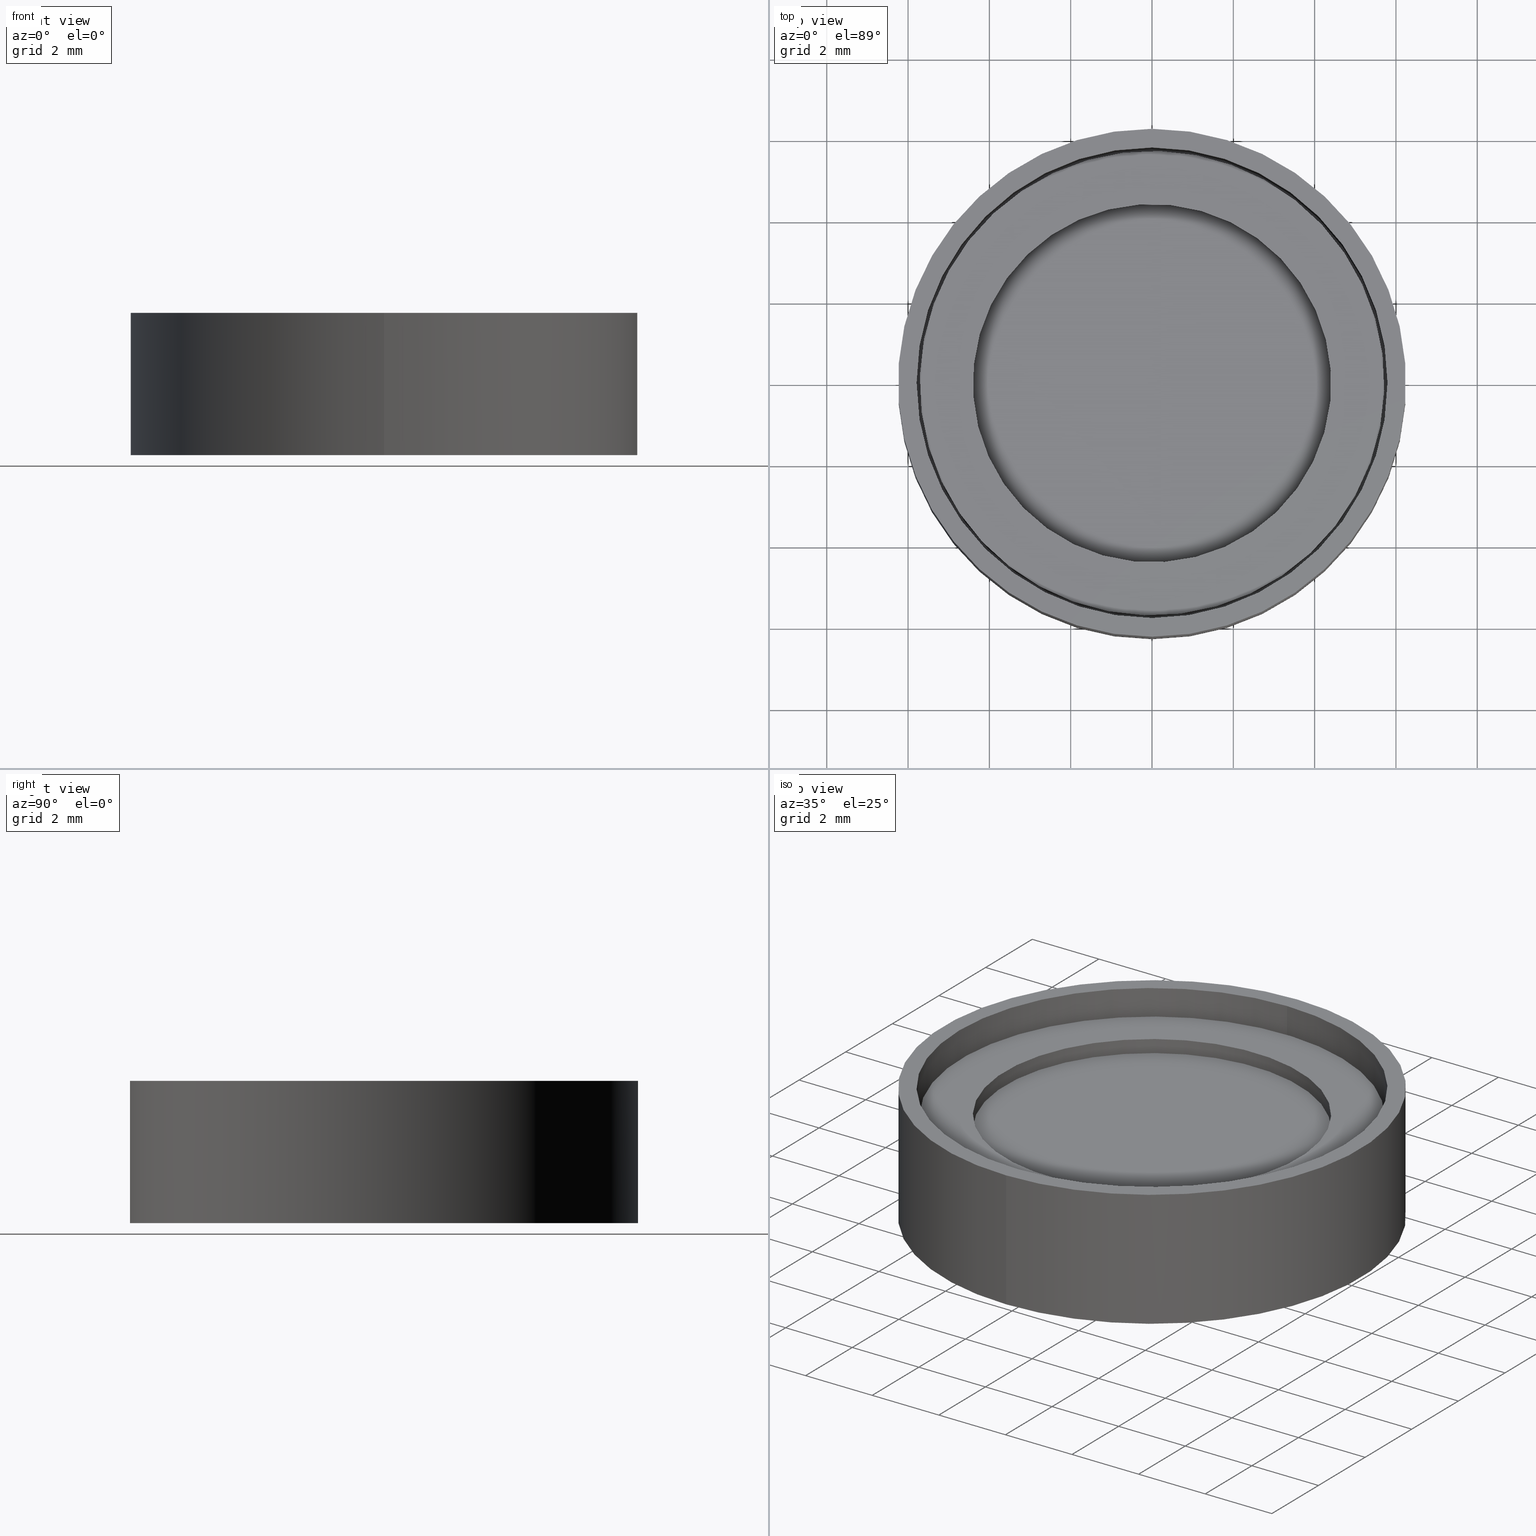
[diagram: canonical four-view strip — front | top / right | iso, engineering-drawing reading convention]
A machine part, canonical four-view strip (front | top / right | iso — engineering-drawing reading convention). The complete STEP part file that produces these views, byte-faithful:
ISO-10303-21;
HEADER;
FILE_DESCRIPTION (( 'STEP AP203' ),
    '1' );
FILE_NAME ('199409.STEP',
    '2020-03-04T03:56:28',
    ( '' ),
    ( '' ),
    'SwSTEP 2.0',
    'SolidWorks 2019',
    '' );
FILE_SCHEMA (( 'CONFIG_CONTROL_DESIGN' ));
ENDSEC;

DATA;
#1 = PLANE ( 'NONE',  #22 ) ;
#2 = APPLICATION_PROTOCOL_DEFINITION ( 'international standard', 'config_control_design', 1994, #388 ) ;
#3 = VECTOR ( 'NONE', #374, 1000.000000000000000 ) ;
#4 = DIRECTION ( 'NONE',  ( 0.0000000000000000000, 1.000000000000000000, 1.224606353822377751E-16 ) ) ;
#5 = APPROVAL ( #118, 'δָ��' ) ;
#6 =( LENGTH_UNIT ( ) NAMED_UNIT ( * ) SI_UNIT ( .MILLI., .METRE. ) );
#7 = LINE ( 'NONE', #559, #201 ) ;
#8 = ORIENTED_EDGE ( 'NONE', *, *, #491, .T. ) ;
#9 = DIRECTION ( 'NONE',  ( 0.0000000000000000000, 0.0000000000000000000, 1.000000000000000000 ) ) ;
#10 = EDGE_LOOP ( 'NONE', ( #214, #481 ) ) ;
#11 = ADVANCED_FACE ( 'NONE', ( #392, #138 ), #654, .T. ) ;
#12 = LOCAL_TIME ( 11, 56, 28.00000000000000000, #568 ) ;
#13 = FACE_OUTER_BOUND ( 'NONE', #496, .T. ) ;
#14 = ORIENTED_EDGE ( 'NONE', *, *, #460, .T. ) ;
#15 = EDGE_LOOP ( 'NONE', ( #527, #490 ) ) ;
#16 = DIRECTION ( 'NONE',  ( 0.0000000000000000000, 1.296294465540253898E-16, -1.000000000000000000 ) ) ;
#17 = VERTEX_POINT ( 'NONE', #232 ) ;
#18 = ORIENTED_EDGE ( 'NONE', *, *, #320, .T. ) ;
#19 = FACE_OUTER_BOUND ( 'NONE', #593, .T. ) ;
#20 = ORIENTED_EDGE ( 'NONE', *, *, #386, .F. ) ;
#21 = CARTESIAN_POINT ( 'NONE',  ( 5.319130907416610252E-16, -4.343399999999999928, -1.063791047438421996E-15 ) ) ;
#22 = AXIS2_PLACEMENT_3D ( 'NONE', #200, #423, #115 ) ;
#23 = ORIENTED_EDGE ( 'NONE', *, *, #194, .T. ) ;
#24 = AXIS2_PLACEMENT_3D ( 'NONE', #347, #147, #197 ) ;
#25 = SECURITY_CLASSIFICATION ( '', '', #477 ) ;
#26 = CARTESIAN_POINT ( 'NONE',  ( 7.652083059792319479E-16, -6.248400000000000176, 3.500000000000000000 ) ) ;
#27 = ORIENTED_EDGE ( 'NONE', *, *, #491, .F. ) ;
#28 = EDGE_CURVE ( 'NONE', #537, #268, #43, .T. ) ;
#29 = DIRECTION ( 'NONE',  ( 0.0000000000000000000, 1.224606353822375779E-16, -1.000000000000000000 ) ) ;
#30 = VERTEX_POINT ( 'NONE', #287 ) ;
#31 = DIRECTION ( 'NONE',  ( 0.0000000000000000000, 0.0000000000000000000, 1.000000000000000000 ) ) ;
#32 = CC_DESIGN_PERSON_AND_ORGANIZATION_ASSIGNMENT ( #205, #166, ( #25 ) ) ;
#33 = FACE_OUTER_BOUND ( 'NONE', #422, .T. ) ;
#34 = VECTOR ( 'NONE', #299, 1000.000000000000000 ) ;
#35 = VECTOR ( 'NONE', #554, 1000.000000000000000 ) ;
#36 = EDGE_CURVE ( 'NONE', #224, #627, #191, .T. ) ;
#37 = CARTESIAN_POINT ( 'NONE',  ( 4.734387201388630118, 3.201062765290226153, 2.381000000000000227 ) ) ;
#38 = ORIENTED_EDGE ( 'NONE', *, *, #353, .F. ) ;
#39 = DIRECTION ( 'NONE',  ( 0.0000000000000000000, 0.0000000000000000000, 1.000000000000000000 ) ) ;
#40 = CARTESIAN_POINT ( 'NONE',  ( 0.0000000000000000000, 5.791199999999999903, 3.500000000000000000 ) ) ;
#41 = CYLINDRICAL_SURFACE ( 'NONE', #401, 5.699999999999999289 ) ;
#42 = DIRECTION ( 'NONE',  ( 0.0000000000000000000, 1.224606353822375779E-16, -1.000000000000000000 ) ) ;
#43 = CIRCLE ( 'NONE', #584, 5.714999999999998082 ) ;
#44 = CC_DESIGN_SECURITY_CLASSIFICATION ( #25, ( #390 ) ) ;
#45 = DIRECTION ( 'NONE',  ( 0.0000000000000000000, 0.0000000000000000000, -1.000000000000000000 ) ) ;
#46 = FACE_BOUND ( 'NONE', #569, .T. ) ;
#47 = CARTESIAN_POINT ( 'NONE',  ( 0.0000000000000000000, 0.0000000000000000000, 2.380999999999999339 ) ) ;
#48 = CARTESIAN_POINT ( 'NONE',  ( 7.092174543222150290E-16, -5.791199999999999903, 0.6857999999999999652 ) ) ;
#49 = ORIENTED_EDGE ( 'NONE', *, *, #635, .F. ) ;
#50 = CARTESIAN_POINT ( 'NONE',  ( 0.0000000000000000000, 5.854700000000000237, 0.3810000000000000053 ) ) ;
#51 = CARTESIAN_POINT ( 'NONE',  ( 0.0000000000000000000, -4.665750208063249815E-17, 0.3810000000000000053 ) ) ;
#52 = CLOSED_SHELL ( 'NONE', ( #356, #499, #508, #87, #468, #384 ) ) ;
#53 = DIRECTION ( 'NONE',  ( 0.0000000000000000000, 0.0000000000000000000, 1.000000000000000000 ) ) ;
#54 = CIRCLE ( 'NONE', #426, 5.699999999999999289 ) ;
#55 = DIRECTION ( 'NONE',  ( 0.0000000000000000000, 1.224606353822375779E-16, -1.000000000000000000 ) ) ;
#56 = ADVANCED_FACE ( 'NONE', ( #33 ), #605, .T. ) ;
#57 = CALENDAR_DATE ( 2020, 4, 3 ) ;
#58 = FACE_BOUND ( 'NONE', #621, .T. ) ;
#59 = DATE_TIME_ROLE ( 'classification_date' ) ;
#60 = VERTEX_POINT ( 'NONE', #609 ) ;
#61 = DIRECTION ( 'NONE',  ( 0.8284142084669521289, 0.5601159694296110603, 0.0000000000000000000 ) ) ;
#62 = ORIENTED_EDGE ( 'NONE', *, *, #256, .F. ) ;
#63 = AXIS2_PLACEMENT_3D ( 'NONE', #437, #323, #530 ) ;
#64 = ORIENTED_EDGE ( 'NONE', *, *, #516, .F. ) ;
#65 = VECTOR ( 'NONE', #450, 1000.000000000000000 ) ;
#66 = CARTESIAN_POINT ( 'NONE',  ( 0.0000000000000000000, 4.343399999999999928, -1.166437552015811992E-16 ) ) ;
#67 = ORIENTED_EDGE ( 'NONE', *, *, #652, .F. ) ;
#68 = PRODUCT_DEFINITION ( 'δ֪', '', #390, #658 ) ;
#69 = VERTEX_POINT ( 'NONE', #183 ) ;
#70 = DIRECTION ( 'NONE',  ( 0.8284142084669521289, 0.5601159694296110603, 0.0000000000000000000 ) ) ;
#71 = ORIENTED_EDGE ( 'NONE', *, *, #28, .F. ) ;
#72 = ADVANCED_BREP_SHAPE_REPRESENTATION ( '199409', ( #184, #413, #643, #511 ), #624 ) ;
#73 = COORDINATED_UNIVERSAL_TIME_OFFSET ( 8, 0, .AHEAD. ) ;
#74 = ORIENTED_EDGE ( 'NONE', *, *, #588, .T. ) ;
#75 = DIRECTION ( 'NONE',  ( 0.0000000000000000000, 0.0000000000000000000, -1.000000000000000000 ) ) ;
#76 = VERTEX_POINT ( 'NONE', #143 ) ;
#77 = DIRECTION ( 'NONE',  ( 0.0000000000000000000, 1.224606353822377751E-16, -1.000000000000000000 ) ) ;
#78 = AXIS2_PLACEMENT_3D ( 'NONE', #603, #240, #651 ) ;
#79 = ORIENTED_EDGE ( 'NONE', *, *, #472, .F. ) ;
#80 = LOCAL_TIME ( 11, 56, 28.00000000000000000, #487 ) ;
#81 = DIRECTION ( 'NONE',  ( 0.0000000000000000000, 1.000000000000000000, 1.310508220644863167E-16 ) ) ;
#82 = DIRECTION ( 'NONE',  ( 0.0000000000000000000, 1.224606353822375779E-16, -1.000000000000000000 ) ) ;
#83 = PRODUCT ( '199409', '199409', '', ( #203 ) ) ;
#84 = DIRECTION ( 'NONE',  ( 0.0000000000000000000, -0.0000000000000000000, 1.000000000000000000 ) ) ;
#85 = ORIENTED_EDGE ( 'NONE', *, *, #397, .T. ) ;
#86 = DIRECTION ( 'NONE',  ( 0.8284142084669521289, 0.5601159694296110603, 0.0000000000000000000 ) ) ;
#87 = ADVANCED_FACE ( 'NONE', ( #187, #641 ), #179, .F. ) ;
#88 = ORIENTED_EDGE ( 'NONE', *, *, #185, .T. ) ;
#89 = CIRCLE ( 'NONE', #622, 4.343399999999999928 ) ;
#90 = AXIS2_PLACEMENT_3D ( 'NONE', #547, #545, #454 ) ;
#91 = DIRECTION ( 'NONE',  ( 0.0000000000000000000, 1.000000000000000000, 1.203702003715951087E-16 ) ) ;
#92 = ORIENTED_EDGE ( 'NONE', *, *, #416, .T. ) ;
#93 = CARTESIAN_POINT ( 'NONE',  ( -4.599014845327200618, -3.367352439597023128, 2.380999999999999339 ) ) ;
#94 = ORIENTED_EDGE ( 'NONE', *, *, #397, .F. ) ;
#95 = CARTESIAN_POINT ( 'NONE',  ( 0.0000000000000000000, 4.343399999999999928, 0.0000000000000000000 ) ) ;
#96 = FACE_OUTER_BOUND ( 'NONE', #264, .T. ) ;
#97 = AXIS2_PLACEMENT_3D ( 'NONE', #156, #101, #611 ) ;
#98 = EDGE_CURVE ( 'NONE', #557, #478, #132, .T. ) ;
#99 = APPROVAL_PERSON_ORGANIZATION ( #310, #134, #272 ) ;
#100 = APPLICATION_CONTEXT ( 'configuration controlled 3d designs of mechanical parts and assemblies' ) ;
#101 = DIRECTION ( 'NONE',  ( 0.0000000000000000000, 1.224606353822377751E-16, -1.000000000000000000 ) ) ;
#102 = DIRECTION ( 'NONE',  ( 0.0000000000000000000, 1.000000000000000000, 1.224606353822376026E-16 ) ) ;
#103 = FACE_OUTER_BOUND ( 'NONE', #358, .T. ) ;
#104 = PERSON_AND_ORGANIZATION_ROLE ( 'design_owner' ) ;
#105 = EDGE_CURVE ( 'NONE', #76, #380, #236, .T. ) ;
#106 = CARTESIAN_POINT ( 'NONE',  ( 7.092174543222150290E-16, -5.791199999999999903, 3.500000000000000000 ) ) ;
#107 = CIRCLE ( 'NONE', #646, 5.854700000000000237 ) ;
#108 = DATE_TIME_ROLE ( 'creation_date' ) ;
#109 = CIRCLE ( 'NONE', #193, 4.406899999999999373 ) ;
#110 = LOCAL_TIME ( 11, 56, 28.00000000000000000, #532 ) ;
#111 = DIRECTION ( 'NONE',  ( 0.0000000000000000000, 0.0000000000000000000, 1.000000000000000000 ) ) ;
#112 = DATE_AND_TIME ( #208, #12 ) ;
#113 = FACE_OUTER_BOUND ( 'NONE', #313, .T. ) ;
#114 = ORIENTED_EDGE ( 'NONE', *, *, #465, .T. ) ;
#115 = DIRECTION ( 'NONE',  ( 1.000000000000000000, 0.0000000000000000000, 0.0000000000000000000 ) ) ;
#116 = ORIENTED_EDGE ( 'NONE', *, *, #260, .T. ) ;
#117 = CC_DESIGN_PERSON_AND_ORGANIZATION_ASSIGNMENT ( #566, #104, ( #83 ) ) ;
#118 = APPROVAL_STATUS ( 'not_yet_approved' ) ;
#119 = CLOSED_SHELL ( 'NONE', ( #601, #367, #457, #518 ) ) ;
#120 = AXIS2_PLACEMENT_3D ( 'NONE', #458, #329, #285 ) ;
#121 = DIRECTION ( 'NONE',  ( 0.0000000000000000000, 0.0000000000000000000, 1.000000000000000000 ) ) ;
#122 = VERTEX_POINT ( 'NONE', #394 ) ;
#123 = PERSON_AND_ORGANIZATION_ROLE ( 'design_supplier' ) ;
#124 = EDGE_LOOP ( 'NONE', ( #92, #85 ) ) ;
#125 = DIRECTION ( 'NONE',  ( 0.0000000000000000000, 1.224606353822375779E-16, -1.000000000000000000 ) ) ;
#126 = ORIENTED_EDGE ( 'NONE', *, *, #341, .T. ) ;
#127 = EDGE_CURVE ( 'NONE', #557, #535, #389, .T. ) ;
#128 = PLANE ( 'NONE',  #90 ) ;
#129 = EDGE_CURVE ( 'NONE', #486, #262, #501, .T. ) ;
#130 = ORIENTED_EDGE ( 'NONE', *, *, #359, .F. ) ;
#131 = DIRECTION ( 'NONE',  ( 0.0000000000000000000, 1.000000000000000000, 1.224606353822377751E-16 ) ) ;
#132 = LINE ( 'NONE', #334, #245 ) ;
#133 = CIRCLE ( 'NONE', #237, 6.248400000000000176 ) ;
#134 = APPROVAL ( #325, 'δָ��' ) ;
#135 = FACE_OUTER_BOUND ( 'NONE', #124, .T. ) ;
#136 = DIRECTION ( 'NONE',  ( 1.000000000000000000, 0.0000000000000000000, 0.0000000000000000000 ) ) ;
#137 = DIRECTION ( 'NONE',  ( 0.8068447097065265528, 0.5907635858942146267, 0.0000000000000000000 ) ) ;
#138 = FACE_BOUND ( 'NONE', #10, .T. ) ;
#139 = DIRECTION ( 'NONE',  ( 0.8068447097065264417, 0.5907635858942145157, 0.0000000000000000000 ) ) ;
#140 = ORIENTED_EDGE ( 'NONE', *, *, #341, .F. ) ;
#141 = AXIS2_PLACEMENT_3D ( 'NONE', #503, #82, #337 ) ;
#142 = CIRCLE ( 'NONE', #531, 5.791199999999999903 ) ;
#143 = CARTESIAN_POINT ( 'NONE',  ( -4.599014845327200618, -3.367352439597023128, 2.380999999999999339 ) ) ;
#144 = EDGE_CURVE ( 'NONE', #262, #486, #425, .T. ) ;
#145 = DIRECTION ( 'NONE',  ( 0.0000000000000000000, 1.000000000000000000, 1.310508220644863167E-16 ) ) ;
#146 = CARTESIAN_POINT ( 'NONE',  ( 3.650738575293011046, 2.468375065679352609, 2.762000000000000011 ) ) ;
#147 = DIRECTION ( 'NONE',  ( 0.0000000000000000000, 0.0000000000000000000, 1.000000000000000000 ) ) ;
#148 = CARTESIAN_POINT ( 'NONE',  ( 0.0000000000000000000, 5.854700000000000237, 7.169702819723869903E-16 ) ) ;
#149 = AXIS2_PLACEMENT_3D ( 'NONE', #546, #387, #595 ) ;
#150 = LINE ( 'NONE', #93, #213 ) ;
#151 = DIRECTION ( 'NONE',  ( 0.0000000000000000000, 1.000000000000000000, 1.497723680736986336E-16 ) ) ;
#152 = EDGE_CURVE ( 'NONE', #262, #328, #207, .T. ) ;
#153 = CARTESIAN_POINT ( 'NONE',  ( 0.0000000000000000000, 4.343399999999999928, 0.3810000000000000053 ) ) ;
#154 = APPROVAL_ROLE ( '' ) ;
#155 = VERTEX_POINT ( 'NONE', #617 ) ;
#156 = CARTESIAN_POINT ( 'NONE',  ( 0.0000000000000000000, 0.0000000000000000000, 0.0000000000000000000 ) ) ;
#157 = AXIS2_PLACEMENT_3D ( 'NONE', #520, #55, #620 ) ;
#158 = APPROVAL_DATE_TIME ( #435, #5 ) ;
#159 = AXIS2_PLACEMENT_3D ( 'NONE', #298, #406, #243 ) ;
#160 = ORIENTED_EDGE ( 'NONE', *, *, #152, .F. ) ;
#161 = CARTESIAN_POINT ( 'NONE',  ( 7.169939614968009697E-16, -5.854700000000000237, -7.169702819723869903E-16 ) ) ;
#162 = APPROVAL_DATE_TIME ( #261, #134 ) ;
#163 = ORIENTED_EDGE ( 'NONE', *, *, #418, .T. ) ;
#164 = DIRECTION ( 'NONE',  ( 0.0000000000000000000, 0.0000000000000000000, 1.000000000000000000 ) ) ;
#165 = VERTEX_POINT ( 'NONE', #564 ) ;
#166 = PERSON_AND_ORGANIZATION_ROLE ( 'classification_officer' ) ;
#167 = ORIENTED_EDGE ( 'NONE', *, *, #335, .F. ) ;
#168 = CARTESIAN_POINT ( 'NONE',  ( 4.599014845327200618, 3.367352439597023572, 2.380999999999999339 ) ) ;
#169 = ORIENTED_EDGE ( 'NONE', *, *, #335, .T. ) ;
#170 = AXIS2_PLACEMENT_3D ( 'NONE', #309, #270, #316 ) ;
#171 = EDGE_LOOP ( 'NONE', ( #315, #578, #638, #94 ) ) ;
#172 = AXIS2_PLACEMENT_3D ( 'NONE', #235, #84, #283 ) ;
#173 = DIRECTION ( 'NONE',  ( 0.8284142084669521289, 0.5601159694296110603, 0.0000000000000000000 ) ) ;
#174 = EDGE_LOOP ( 'NONE', ( #20, #321, #311, #573 ) ) ;
#175 = LINE ( 'NONE', #383, #3 ) ;
#176 = ORIENTED_EDGE ( 'NONE', *, *, #565, .F. ) ;
#177 = ADVANCED_FACE ( 'NONE', ( #103 ), #410, .F. ) ;
#178 = DIRECTION ( 'NONE',  ( 0.0000000000000000000, 1.248103067280821700E-16, -1.000000000000000000 ) ) ;
#179 = PLANE ( 'NONE',  #149 ) ;
#180 = DIRECTION ( 'NONE',  ( 0.0000000000000000000, 0.0000000000000000000, 1.000000000000000000 ) ) ;
#181 = CIRCLE ( 'NONE', #265, 4.343399999999999928 ) ;
#182 = AXIS2_PLACEMENT_3D ( 'NONE', #259, #121, #70 ) ;
#183 = CARTESIAN_POINT ( 'NONE',  ( -4.599014845327200618, -3.367352439597023128, 0.3810000000000000053 ) ) ;
#184 = MANIFOLD_SOLID_BREP ( 'NONE', #614 ) ;
#185 = EDGE_CURVE ( 'NONE', #368, #627, #181, .T. ) ;
#186 = DIRECTION ( 'NONE',  ( 0.0000000000000000000, -0.0000000000000000000, 1.000000000000000000 ) ) ;
#187 = FACE_OUTER_BOUND ( 'NONE', #330, .T. ) ;
#188 = CARTESIAN_POINT ( 'NONE',  ( 4.599014845327200618, 3.367352439597023572, 0.3810000000000000053 ) ) ;
#189 = ORIENTED_EDGE ( 'NONE', *, *, #353, .T. ) ;
#190 = DIRECTION ( 'NONE',  ( 0.0000000000000000000, 1.203702003715949854E-16, -1.000000000000000000 ) ) ;
#191 = LINE ( 'NONE', #645, #226 ) ;
#192 = AXIS2_PLACEMENT_3D ( 'NONE', #538, #9, #327 ) ;
#193 = AXIS2_PLACEMENT_3D ( 'NONE', #248, #467, #195 ) ;
#194 = EDGE_CURVE ( 'NONE', #165, #238, #252, .T. ) ;
#195 = DIRECTION ( 'NONE',  ( 0.8284142084669521289, 0.5601159694296110603, 0.0000000000000000000 ) ) ;
#196 = DIRECTION ( 'NONE',  ( 0.0000000000000000000, 1.224606353822377751E-16, -1.000000000000000000 ) ) ;
#197 = DIRECTION ( 'NONE',  ( 0.8284142084669521289, 0.5601159694296110603, 0.0000000000000000000 ) ) ;
#198 = DIRECTION ( 'NONE',  ( 0.0000000000000000000, 1.224606353822375779E-16, -1.000000000000000000 ) ) ;
#199 = DIRECTION ( 'NONE',  ( 0.0000000000000000000, 0.0000000000000000000, 1.000000000000000000 ) ) ;
#200 = CARTESIAN_POINT ( 'NONE',  ( 0.0000000000000000000, 4.343399999999999928, 0.3810000000000000053 ) ) ;
#201 = VECTOR ( 'NONE', #514, 1000.000000000000000 ) ;
#202 = AXIS2_PLACEMENT_3D ( 'NONE', #430, #16, #218 ) ;
#203 = MECHANICAL_CONTEXT ( 'NONE', #388, 'mechanical' ) ;
#204 = CARTESIAN_POINT ( 'NONE',  ( 0.0000000000000000000, 0.0000000000000000000, 0.0000000000000000000 ) ) ;
#205 = PERSON_AND_ORGANIZATION ( #409, #598 ) ;
#206 = ORIENTED_EDGE ( 'NONE', *, *, #105, .T. ) ;
#207 = LINE ( 'NONE', #463, #596 ) ;
#208 = CALENDAR_DATE ( 2020, 4, 3 ) ;
#209 = ORIENTED_EDGE ( 'NONE', *, *, #320, .F. ) ;
#210 = CARTESIAN_POINT ( 'NONE',  ( 0.0000000000000000000, 6.513626379162269541E-32, -5.318955237192109979E-16 ) ) ;
#211 = ORIENTED_EDGE ( 'NONE', *, *, #460, .F. ) ;
#212 = AXIS2_PLACEMENT_3D ( 'NONE', #371, #111, #629 ) ;
#213 = VECTOR ( 'NONE', #563, 1000.000000000000000 ) ;
#214 = ORIENTED_EDGE ( 'NONE', *, *, #129, .T. ) ;
#215 = CARTESIAN_POINT ( 'NONE',  ( 0.0000000000000000000, 0.0000000000000000000, 2.380999999999999339 ) ) ;
#216 = ORIENTED_EDGE ( 'NONE', *, *, #260, .F. ) ;
#217 = VERTEX_POINT ( 'NONE', #407 ) ;
#218 = DIRECTION ( 'NONE',  ( 0.0000000000000000000, 1.000000000000000000, 1.296294465540254884E-16 ) ) ;
#219 = CC_DESIGN_PERSON_AND_ORGANIZATION_ASSIGNMENT ( #421, #123, ( #390 ) ) ;
#220 = ORIENTED_EDGE ( 'NONE', *, *, #152, .T. ) ;
#221 = APPLICATION_PROTOCOL_DEFINITION ( 'international standard', 'config_control_design', 1994, #100 ) ;
#222 = ORIENTED_EDGE ( 'NONE', *, *, #28, .T. ) ;
#223 = CARTESIAN_POINT ( 'NONE',  ( 0.0000000000000000000, -4.665750208063249815E-17, 0.3810000000000000053 ) ) ;
#224 = VERTEX_POINT ( 'NONE', #153 ) ;
#225 = EDGE_CURVE ( 'NONE', #634, #631, #107, .T. ) ;
#226 = VECTOR ( 'NONE', #344, 1000.000000000000000 ) ;
#227 = AXIS2_PLACEMENT_3D ( 'NONE', #602, #178, #642 ) ;
#228 = CYLINDRICAL_SURFACE ( 'NONE', #170, 5.791199999999999903 ) ;
#229 = EDGE_LOOP ( 'NONE', ( #434, #220, #585, #64 ) ) ;
#230 = CC_DESIGN_DATE_AND_TIME_ASSIGNMENT ( #112, #108, ( #68 ) ) ;
#231 = PLANE ( 'NONE',  #172 ) ;
#232 = CARTESIAN_POINT ( 'NONE',  ( -3.650738575293011490, -2.468375065679352165, 2.381000000000000227 ) ) ;
#233 = CYLINDRICAL_SURFACE ( 'NONE', #266, 5.714999999999998082 ) ;
#234 = ORIENTED_EDGE ( 'NONE', *, *, #472, .T. ) ;
#235 = CARTESIAN_POINT ( 'NONE',  ( 0.0000000000000000000, 0.0000000000000000000, 0.3810000000000000053 ) ) ;
#236 = CIRCLE ( 'NONE', #439, 5.699999999999999289 ) ;
#237 = AXIS2_PLACEMENT_3D ( 'NONE', #517, #608, #102 ) ;
#238 = VERTEX_POINT ( 'NONE', #146 ) ;
#239 = DIRECTION ( 'NONE',  ( 0.0000000000000000000, 1.000000000000000000, 1.224606353822376026E-16 ) ) ;
#240 = DIRECTION ( 'NONE',  ( 0.0000000000000000000, 1.388134143122084055E-16, -1.000000000000000000 ) ) ;
#241 = LINE ( 'NONE', #502, #35 ) ;
#242 = DIRECTION ( 'NONE',  ( 0.0000000000000000000, 0.0000000000000000000, 1.000000000000000000 ) ) ;
#243 = DIRECTION ( 'NONE',  ( 0.0000000000000000000, 1.000000000000000000, 1.296294465540254884E-16 ) ) ;
#244 = CYLINDRICAL_SURFACE ( 'NONE', #377, 5.791199999999999903 ) ;
#245 = VECTOR ( 'NONE', #282, 1000.000000000000000 ) ;
#246 = CARTESIAN_POINT ( 'NONE',  ( -4.734387201388630118, -3.201062765290225709, 2.381000000000000227 ) ) ;
#247 = PLANE ( 'NONE',  #570 ) ;
#248 = CARTESIAN_POINT ( 'NONE',  ( 0.0000000000000000000, 0.0000000000000000000, 2.762000000000000011 ) ) ;
#249 = FACE_OUTER_BOUND ( 'NONE', #555, .T. ) ;
#250 = ADVANCED_FACE ( 'NONE', ( #512 ), #360, .T. ) ;
#251 = DIRECTION ( 'NONE',  ( 0.0000000000000000000, 1.224606353822375779E-16, -1.000000000000000000 ) ) ;
#252 = LINE ( 'NONE', #352, #277 ) ;
#253 = CIRCLE ( 'NONE', #305, 5.791199999999999903 ) ;
#254 = CYLINDRICAL_SURFACE ( 'NONE', #278, 5.854700000000000237 ) ;
#255 = FACE_OUTER_BOUND ( 'NONE', #229, .T. ) ;
#256 = EDGE_CURVE ( 'NONE', #60, #631, #420, .T. ) ;
#257 = PERSON_AND_ORGANIZATION_ROLE ( 'creator' ) ;
#258 = ORIENTED_EDGE ( 'NONE', *, *, #36, .T. ) ;
#259 = CARTESIAN_POINT ( 'NONE',  ( 0.0000000000000000000, 0.0000000000000000000, 2.762000000000000011 ) ) ;
#260 = EDGE_CURVE ( 'NONE', #224, #30, #543, .T. ) ;
#261 = DATE_AND_TIME ( #618, #306 ) ;
#262 = VERTEX_POINT ( 'NONE', #106 ) ;
#263 = DIRECTION ( 'NONE',  ( 0.0000000000000000000, 0.0000000000000000000, 1.000000000000000000 ) ) ;
#264 = EDGE_LOOP ( 'NONE', ( #271, #488 ) ) ;
#265 = AXIS2_PLACEMENT_3D ( 'NONE', #294, #196, #4 ) ;
#266 = AXIS2_PLACEMENT_3D ( 'NONE', #650, #180, #86 ) ;
#267 = DIRECTION ( 'NONE',  ( 0.0000000000000000000, 1.224606353822375779E-16, -1.000000000000000000 ) ) ;
#268 = VERTEX_POINT ( 'NONE', #616 ) ;
#269 = ORIENTED_EDGE ( 'NONE', *, *, #576, .T. ) ;
#270 = DIRECTION ( 'NONE',  ( 0.0000000000000000000, 1.224606353822375779E-16, -1.000000000000000000 ) ) ;
#271 = ORIENTED_EDGE ( 'NONE', *, *, #443, .T. ) ;
#272 = APPROVAL_ROLE ( '' ) ;
#273 = VERTEX_POINT ( 'NONE', #348 ) ;
#274 = DIRECTION ( 'NONE',  ( 0.0000000000000000000, 1.224606353822377751E-16, -1.000000000000000000 ) ) ;
#275 = APPROVAL ( #587, 'δָ��' ) ;
#276 = EDGE_LOOP ( 'NONE', ( #116, #114 ) ) ;
#277 = VECTOR ( 'NONE', #515, 1000.000000000000000 ) ;
#278 = AXIS2_PLACEMENT_3D ( 'NONE', #464, #251, #657 ) ;
#279 = FACE_BOUND ( 'NONE', #372, .T. ) ;
#280 = ORIENTED_EDGE ( 'NONE', *, *, #105, .F. ) ;
#281 = FACE_OUTER_BOUND ( 'NONE', #480, .T. ) ;
#282 = DIRECTION ( 'NONE',  ( 0.0000000000000000000, 1.224606353822375779E-16, -1.000000000000000000 ) ) ;
#283 = DIRECTION ( 'NONE',  ( 0.8068447097065264417, 0.5907635858942145157, 0.0000000000000000000 ) ) ;
#284 = ORIENTED_EDGE ( 'NONE', *, *, #412, .T. ) ;
#285 = DIRECTION ( 'NONE',  ( 0.0000000000000000000, 1.000000000000000000, 1.388134143122084794E-16 ) ) ;
#286 = AXIS2_PLACEMENT_3D ( 'NONE', #507, #470, #297 ) ;
#287 = CARTESIAN_POINT ( 'NONE',  ( 5.319130907416610252E-16, -4.343399999999999928, 0.3810000000000000053 ) ) ;
#288 = DIRECTION ( 'NONE',  ( 0.0000000000000000000, 0.0000000000000000000, 1.000000000000000000 ) ) ;
#289 = DIRECTION ( 'NONE',  ( 0.8284142084669521289, 0.5601159694296110603, 0.0000000000000000000 ) ) ;
#290 = ADVANCED_FACE ( 'NONE', ( #302 ), #571, .F. ) ;
#291 = FACE_OUTER_BOUND ( 'NONE', #628, .T. ) ;
#292 = DIRECTION ( 'NONE',  ( 0.0000000000000000000, 1.224606353822375779E-16, -1.000000000000000000 ) ) ;
#293 = CARTESIAN_POINT ( 'NONE',  ( 0.0000000000000000000, 6.248400000000000176, 3.500000000000000000 ) ) ;
#294 = CARTESIAN_POINT ( 'NONE',  ( 0.0000000000000000000, 6.513626379162269541E-32, -5.318955237192109979E-16 ) ) ;
#295 = CC_DESIGN_APPROVAL ( #275, ( #68 ) ) ;
#296 = APPROVAL_PERSON_ORGANIZATION ( #379, #275, #154 ) ;
#297 = DIRECTION ( 'NONE',  ( 0.0000000000000000000, 1.000000000000000000, 1.497723680736986336E-16 ) ) ;
#298 = CARTESIAN_POINT ( 'NONE',  ( 0.0000000000000000000, -8.398350374513850530E-17, 0.6857999999999999652 ) ) ;
#299 = DIRECTION ( 'NONE',  ( 0.0000000000000000000, 1.224606353822375779E-16, -1.000000000000000000 ) ) ;
#300 = CARTESIAN_POINT ( 'NONE',  ( -4.734387201388630118, -3.201062765290225709, 2.762000000000000011 ) ) ;
#301 = UNCERTAINTY_MEASURE_WITH_UNIT (LENGTH_MEASURE( 1.000000000000000082E-05 ), #6, 'distance_accuracy_value', 'NONE');
#302 = FACE_OUTER_BOUND ( 'NONE', #548, .T. ) ;
#303 = PRODUCT_RELATED_PRODUCT_CATEGORY ( 'detail', '', ( #83 ) ) ;
#304 = AXIS2_PLACEMENT_3D ( 'NONE', #366, #164, #623 ) ;
#305 = AXIS2_PLACEMENT_3D ( 'NONE', #556, #610, #145 ) ;
#306 = LOCAL_TIME ( 11, 56, 28.00000000000000000, #319 ) ;
#307 = PERSON_AND_ORGANIZATION ( #409, #598 ) ;
#308 = ORIENTED_EDGE ( 'NONE', *, *, #497, .T. ) ;
#309 = CARTESIAN_POINT ( 'NONE',  ( 0.0000000000000000000, 0.0000000000000000000, 0.0000000000000000000 ) ) ;
#310 = PERSON_AND_ORGANIZATION ( #409, #598 ) ;
#311 = ORIENTED_EDGE ( 'NONE', *, *, #256, .T. ) ;
#312 = CARTESIAN_POINT ( 'NONE',  ( 0.0000000000000000000, 0.0000000000000000000, 2.381000000000000227 ) ) ;
#313 = EDGE_LOOP ( 'NONE', ( #160, #365, #475, #308 ) ) ;
#314 = ADVANCED_FACE ( 'NONE', ( #255 ), #244, .F. ) ;
#315 = ORIENTED_EDGE ( 'NONE', *, *, #588, .F. ) ;
#316 = DIRECTION ( 'NONE',  ( 0.0000000000000000000, 1.000000000000000000, 1.224606353822375779E-16 ) ) ;
#317 = ORIENTED_EDGE ( 'NONE', *, *, #194, .F. ) ;
#318 = CIRCLE ( 'NONE', #182, 5.714999999999998082 ) ;
#319 = COORDINATED_UNIVERSAL_TIME_OFFSET ( 8, 0, .AHEAD. ) ;
#320 = EDGE_CURVE ( 'NONE', #17, #217, #7, .T. ) ;
#321 = ORIENTED_EDGE ( 'NONE', *, *, #443, .F. ) ;
#322 = ADVANCED_FACE ( 'NONE', ( #96, #46 ), #247, .T. ) ;
#323 = DIRECTION ( 'NONE',  ( 0.0000000000000000000, 0.0000000000000000000, 1.000000000000000000 ) ) ;
#324 = ORIENTED_EDGE ( 'NONE', *, *, #225, .F. ) ;
#325 = APPROVAL_STATUS ( 'not_yet_approved' ) ;
#326 = ORIENTED_EDGE ( 'NONE', *, *, #127, .F. ) ;
#327 = DIRECTION ( 'NONE',  ( 0.8284142084669521289, 0.5601159694296110603, 0.0000000000000000000 ) ) ;
#328 = VERTEX_POINT ( 'NONE', #48 ) ;
#329 = DIRECTION ( 'NONE',  ( 0.0000000000000000000, 1.388134143122084055E-16, -1.000000000000000000 ) ) ;
#330 = EDGE_LOOP ( 'NONE', ( #71, #176 ) ) ;
#331 = VECTOR ( 'NONE', #125, 1000.000000000000000 ) ;
#332 = CARTESIAN_POINT ( 'NONE',  ( 0.0000000000000000000, 0.0000000000000000000, 2.380999999999999339 ) ) ;
#333 = ADVANCED_FACE ( 'NONE', ( #249, #469 ), #1, .T. ) ;
#334 = CARTESIAN_POINT ( 'NONE',  ( 0.0000000000000000000, 6.248400000000000176, 7.651830341223738892E-16 ) ) ;
#335 = EDGE_CURVE ( 'NONE', #238, #217, #342, .T. ) ;
#336 = CARTESIAN_POINT ( 'NONE',  ( 0.0000000000000000000, 5.791199999999999903, 3.500000000000000000 ) ) ;
#337 = DIRECTION ( 'NONE',  ( 0.0000000000000000000, 1.000000000000000000, 1.224606353822376026E-16 ) ) ;
#338 = CARTESIAN_POINT ( 'NONE',  ( 0.0000000000000000000, 9.370480054233440181E-32, -7.651830341223738892E-16 ) ) ;
#339 = ORIENTED_EDGE ( 'NONE', *, *, #528, .F. ) ;
#340 = DIRECTION ( 'NONE',  ( 0.0000000000000000000, 0.0000000000000000000, 1.000000000000000000 ) ) ;
#341 = EDGE_CURVE ( 'NONE', #17, #165, #606, .T. ) ;
#342 = CIRCLE ( 'NONE', #63, 4.406899999999999373 ) ;
#343 = CIRCLE ( 'NONE', #202, 5.854700000000000237 ) ;
#344 = DIRECTION ( 'NONE',  ( 0.0000000000000000000, 1.224606353822375779E-16, -1.000000000000000000 ) ) ;
#345 = DIRECTION ( 'NONE',  ( 0.8068447097065265528, 0.5907635858942146267, 0.0000000000000000000 ) ) ;
#346 = ORIENTED_EDGE ( 'NONE', *, *, #412, .F. ) ;
#347 = CARTESIAN_POINT ( 'NONE',  ( 0.0000000000000000000, 0.0000000000000000000, 2.381000000000000227 ) ) ;
#348 = CARTESIAN_POINT ( 'NONE',  ( 4.734387201388630118, 3.201062765290226153, 2.762000000000000011 ) ) ;
#349 = AXIS2_PLACEMENT_3D ( 'NONE', #40, #447, #136 ) ;
#350 = DIRECTION ( 'NONE',  ( 0.0000000000000000000, 1.000000000000000000, 1.224606353822375779E-16 ) ) ;
#351 = CIRCLE ( 'NONE', #607, 5.699999999999999289 ) ;
#352 = CARTESIAN_POINT ( 'NONE',  ( 3.650738575293011046, 2.468375065679352609, 2.381000000000000227 ) ) ;
#353 = EDGE_CURVE ( 'NONE', #627, #368, #89, .T. ) ;
#354 =( NAMED_UNIT ( * ) SI_UNIT ( $, .STERADIAN. ) SOLID_ANGLE_UNIT ( ) );
#355 = DIRECTION ( 'NONE',  ( 0.0000000000000000000, 1.248103067280821700E-16, -1.000000000000000000 ) ) ;
#356 = ADVANCED_FACE ( 'NONE', ( #13 ), #632, .F. ) ;
#357 = APPROVAL_ROLE ( '' ) ;
#358 = EDGE_LOOP ( 'NONE', ( #211, #216, #258, #189 ) ) ;
#359 = EDGE_CURVE ( 'NONE', #535, #155, #433, .T. ) ;
#360 = CYLINDRICAL_SURFACE ( 'NONE', #560, 6.248400000000000176 ) ;
#361 = ADVANCED_FACE ( 'NONE', ( #113 ), #228, .F. ) ;
#362 = AXIS2_PLACEMENT_3D ( 'NONE', #456, #396, #151 ) ;
#363 = CIRCLE ( 'NONE', #159, 5.854700000000000237 ) ;
#364 = APPROVAL_DATE_TIME ( #428, #275 ) ;
#365 = ORIENTED_EDGE ( 'NONE', *, *, #129, .F. ) ;
#366 = CARTESIAN_POINT ( 'NONE',  ( 0.0000000000000000000, 0.0000000000000000000, 2.381000000000000227 ) ) ;
#367 = ADVANCED_FACE ( 'NONE', ( #579 ), #485, .T. ) ;
#368 = VERTEX_POINT ( 'NONE', #21 ) ;
#369 = DATE_AND_TIME ( #522, #80 ) ;
#370 = ORIENTED_EDGE ( 'NONE', *, *, #576, .F. ) ;
#371 = CARTESIAN_POINT ( 'NONE',  ( 0.0000000000000000000, 0.0000000000000000000, 2.762000000000000011 ) ) ;
#372 = EDGE_LOOP ( 'NONE', ( #167, #49 ) ) ;
#373 = ORIENTED_EDGE ( 'NONE', *, *, #36, .F. ) ;
#374 = DIRECTION ( 'NONE',  ( 0.0000000000000000000, 0.0000000000000000000, -1.000000000000000000 ) ) ;
#375 = ORIENTED_EDGE ( 'NONE', *, *, #185, .F. ) ;
#376 = ADVANCED_FACE ( 'NONE', ( #381, #58 ), #526, .T. ) ;
#377 = AXIS2_PLACEMENT_3D ( 'NONE', #466, #473, #350 ) ;
#378 = AXIS2_PLACEMENT_3D ( 'NONE', #332, #186, #139 ) ;
#379 = PERSON_AND_ORGANIZATION ( #409, #598 ) ;
#380 = VERTEX_POINT ( 'NONE', #168 ) ;
#381 = FACE_OUTER_BOUND ( 'NONE', #575, .T. ) ;
#382 = ORIENTED_EDGE ( 'NONE', *, *, #127, .T. ) ;
#383 = CARTESIAN_POINT ( 'NONE',  ( 4.599014845327200618, 3.367352439597023572, 2.380999999999999339 ) ) ;
#384 = ADVANCED_FACE ( 'NONE', ( #19 ), #583, .F. ) ;
#385 = CARTESIAN_POINT ( 'NONE',  ( 0.0000000000000000000, -8.398350374513859158E-17, 0.6857999999999999652 ) ) ;
#386 = EDGE_CURVE ( 'NONE', #122, #634, #476, .T. ) ;
#387 = DIRECTION ( 'NONE',  ( 0.0000000000000000000, -0.0000000000000000000, 1.000000000000000000 ) ) ;
#388 = APPLICATION_CONTEXT ( 'configuration controlled 3d designs of mechanical parts and assemblies' ) ;
#389 = CIRCLE ( 'NONE', #78, 6.248400000000000176 ) ;
#390 = PRODUCT_DEFINITION_FORMATION_WITH_SPECIFIED_SOURCE ( '�κ�', '', #83, .NOT_KNOWN. ) ;
#391 = CYLINDRICAL_SURFACE ( 'NONE', #521, 5.714999999999998082 ) ;
#392 = FACE_OUTER_BOUND ( 'NONE', #483, .T. ) ;
#393 = LINE ( 'NONE', #592, #65 ) ;
#394 = CARTESIAN_POINT ( 'NONE',  ( 7.169939614968009697E-16, -5.854700000000000237, 0.6857999999999999652 ) ) ;
#395 = CARTESIAN_POINT ( 'NONE',  ( 0.0000000000000000000, 0.0000000000000000000, 0.3810000000000000053 ) ) ;
#396 = DIRECTION ( 'NONE',  ( 0.0000000000000000000, 1.497723680736985843E-16, -1.000000000000000000 ) ) ;
#397 = EDGE_CURVE ( 'NONE', #619, #273, #510, .T. ) ;
#398 = EDGE_CURVE ( 'NONE', #380, #76, #54, .T. ) ;
#399 = CC_DESIGN_PERSON_AND_ORGANIZATION_ASSIGNMENT ( #525, #536, ( #390 ) ) ;
#400 =( NAMED_UNIT ( * ) PLANE_ANGLE_UNIT ( ) SI_UNIT ( $, .RADIAN. ) );
#401 = AXIS2_PLACEMENT_3D ( 'NONE', #47, #45, #558 ) ;
#402 = ORIENTED_EDGE ( 'NONE', *, *, #497, .F. ) ;
#403 = CC_DESIGN_APPROVAL ( #134, ( #390 ) ) ;
#404 = LINE ( 'NONE', #246, #636 ) ;
#405 = DIRECTION ( 'NONE',  ( 0.0000000000000000000, 1.203702003715949854E-16, -1.000000000000000000 ) ) ;
#406 = DIRECTION ( 'NONE',  ( 0.0000000000000000000, 1.296294465540253898E-16, -1.000000000000000000 ) ) ;
#407 = CARTESIAN_POINT ( 'NONE',  ( -3.650738575293011490, -2.468375065679352165, 2.762000000000000011 ) ) ;
#408 = DIRECTION ( 'NONE',  ( 1.000000000000000000, 0.0000000000000000000, 0.0000000000000000000 ) ) ;
#409 = PERSON ( 'δָ��', 'δָ��', 'δָ��', ('δָ��'), ('δָ��'), ('δָ��') ) ;
#410 = CYLINDRICAL_SURFACE ( 'NONE', #97, 4.343399999999999928 ) ;
#411 = CIRCLE ( 'NONE', #120, 6.248400000000000176 ) ;
#412 = EDGE_CURVE ( 'NONE', #380, #539, #175, .T. ) ;
#413 = MANIFOLD_SOLID_BREP ( 'NONE', #119 ) ;
#414 = CARTESIAN_POINT ( 'NONE',  ( 0.0000000000000000000, 0.0000000000000000000, 0.0000000000000000000 ) ) ;
#415 = DIRECTION ( 'NONE',  ( 0.0000000000000000000, 1.000000000000000000, 1.224606353822376026E-16 ) ) ;
#416 = EDGE_CURVE ( 'NONE', #273, #619, #318, .T. ) ;
#417 = CC_DESIGN_PERSON_AND_ORGANIZATION_ASSIGNMENT ( #581, #257, ( #68 ) ) ;
#418 = EDGE_CURVE ( 'NONE', #165, #17, #462, .T. ) ;
#419 = ORIENTED_EDGE ( 'NONE', *, *, #359, .T. ) ;
#420 = LINE ( 'NONE', #148, #34 ) ;
#421 = PERSON_AND_ORGANIZATION ( #409, #598 ) ;
#422 = EDGE_LOOP ( 'NONE', ( #130, #234, #429, #591 ) ) ;
#423 = DIRECTION ( 'NONE',  ( 0.0000000000000000000, -1.224606353822375779E-16, 1.000000000000000000 ) ) ;
#424 = ORIENTED_EDGE ( 'NONE', *, *, #635, .T. ) ;
#425 = CIRCLE ( 'NONE', #286, 5.791199999999999903 ) ;
#426 = AXIS2_PLACEMENT_3D ( 'NONE', #215, #263, #479 ) ;
#427 = APPROVAL_PERSON_ORGANIZATION ( #307, #5, #357 ) ;
#428 = DATE_AND_TIME ( #577, #597 ) ;
#429 = ORIENTED_EDGE ( 'NONE', *, *, #98, .T. ) ;
#430 = CARTESIAN_POINT ( 'NONE',  ( 0.0000000000000000000, -8.398350374513850530E-17, 0.6857999999999999652 ) ) ;
#431 = EDGE_LOOP ( 'NONE', ( #163, #126 ) ) ;
#432 = ORIENTED_EDGE ( 'NONE', *, *, #398, .T. ) ;
#433 = LINE ( 'NONE', #637, #331 ) ;
#434 = ORIENTED_EDGE ( 'NONE', *, *, #144, .F. ) ;
#435 = DATE_AND_TIME ( #57, #110 ) ;
#436 = ORIENTED_EDGE ( 'NONE', *, *, #418, .F. ) ;
#437 = CARTESIAN_POINT ( 'NONE',  ( 0.0000000000000000000, 0.0000000000000000000, 2.762000000000000011 ) ) ;
#438 = ORIENTED_EDGE ( 'NONE', *, *, #455, .T. ) ;
#439 = AXIS2_PLACEMENT_3D ( 'NONE', #600, #451, #649 ) ;
#440 = AXIS2_PLACEMENT_3D ( 'NONE', #312, #482, #61 ) ;
#441 = CARTESIAN_POINT ( 'NONE',  ( 0.0000000000000000000, 0.0000000000000000000, 2.381000000000000227 ) ) ;
#442 = ORIENTED_EDGE ( 'NONE', *, *, #452, .F. ) ;
#443 = EDGE_CURVE ( 'NONE', #60, #122, #343, .T. ) ;
#444 = CARTESIAN_POINT ( 'NONE',  ( 4.734387201388630118, 3.201062765290226153, 2.381000000000000227 ) ) ;
#445 = ORIENTED_EDGE ( 'NONE', *, *, #465, .F. ) ;
#446 = CYLINDRICAL_SURFACE ( 'NONE', #655, 4.343399999999999928 ) ;
#447 = DIRECTION ( 'NONE',  ( 0.0000000000000000000, -1.224606353822375779E-16, 1.000000000000000000 ) ) ;
#448 = AXIS2_PLACEMENT_3D ( 'NONE', #489, #75, #626 ) ;
#449 = CIRCLE ( 'NONE', #24, 5.714999999999998082 ) ;
#450 = DIRECTION ( 'NONE',  ( 0.0000000000000000000, 1.224606353822375779E-16, -1.000000000000000000 ) ) ;
#451 = DIRECTION ( 'NONE',  ( 0.0000000000000000000, 0.0000000000000000000, 1.000000000000000000 ) ) ;
#452 = EDGE_CURVE ( 'NONE', #631, #634, #544, .T. ) ;
#453 = ADVANCED_FACE ( 'NONE', ( #594 ), #446, .F. ) ;
#454 = DIRECTION ( 'NONE',  ( 0.8284142084669522399, 0.5601159694296110603, 0.0000000000000000000 ) ) ;
#455 = EDGE_CURVE ( 'NONE', #69, #539, #561, .T. ) ;
#456 = CARTESIAN_POINT ( 'NONE',  ( 0.0000000000000000000, -4.286122238378319911E-16, 3.500000000000000000 ) ) ;
#457 = ADVANCED_FACE ( 'NONE', ( #648 ), #653, .T. ) ;
#458 = CARTESIAN_POINT ( 'NONE',  ( 0.0000000000000000000, -4.286122238378319911E-16, 3.500000000000000000 ) ) ;
#459 = ORIENTED_EDGE ( 'NONE', *, *, #386, .T. ) ;
#460 = EDGE_CURVE ( 'NONE', #30, #368, #393, .T. ) ;
#461 = AXIS2_PLACEMENT_3D ( 'NONE', #51, #355, #567 ) ;
#462 = CIRCLE ( 'NONE', #440, 4.406899999999999373 ) ;
#463 = CARTESIAN_POINT ( 'NONE',  ( 7.092174543222150290E-16, -5.791199999999999903, -7.091940316256149925E-16 ) ) ;
#464 = CARTESIAN_POINT ( 'NONE',  ( 0.0000000000000000000, 0.0000000000000000000, 0.0000000000000000000 ) ) ;
#465 = EDGE_CURVE ( 'NONE', #30, #224, #572, .T. ) ;
#466 = CARTESIAN_POINT ( 'NONE',  ( 0.0000000000000000000, 0.0000000000000000000, 0.0000000000000000000 ) ) ;
#467 = DIRECTION ( 'NONE',  ( 0.0000000000000000000, 0.0000000000000000000, 1.000000000000000000 ) ) ;
#468 = ADVANCED_FACE ( 'NONE', ( #135, #279 ), #128, .T. ) ;
#469 = FACE_BOUND ( 'NONE', #276, .T. ) ;
#470 = DIRECTION ( 'NONE',  ( 0.0000000000000000000, 1.497723680736985843E-16, -1.000000000000000000 ) ) ;
#471 = CIRCLE ( 'NONE', #647, 6.248400000000000176 ) ;
#472 = EDGE_CURVE ( 'NONE', #535, #557, #411, .T. ) ;
#473 = DIRECTION ( 'NONE',  ( 0.0000000000000000000, 1.224606353822375779E-16, -1.000000000000000000 ) ) ;
#474 = SHAPE_DEFINITION_REPRESENTATION ( #639, #72 ) ;
#475 = ORIENTED_EDGE ( 'NONE', *, *, #516, .T. ) ;
#476 = LINE ( 'NONE', #161, #519 ) ;
#477 = SECURITY_CLASSIFICATION_LEVEL ( 'unclassified' ) ;
#478 = VERTEX_POINT ( 'NONE', #504 ) ;
#479 = DIRECTION ( 'NONE',  ( 0.8068447097065265528, 0.5907635858942146267, 0.0000000000000000000 ) ) ;
#480 = EDGE_LOOP ( 'NONE', ( #222, #74, #533, #339 ) ) ;
#481 = ORIENTED_EDGE ( 'NONE', *, *, #144, .T. ) ;
#482 = DIRECTION ( 'NONE',  ( 0.0000000000000000000, 0.0000000000000000000, 1.000000000000000000 ) ) ;
#483 = EDGE_LOOP ( 'NONE', ( #326, #79 ) ) ;
#484 = EDGE_LOOP ( 'NONE', ( #206, #432 ) ) ;
#485 = CYLINDRICAL_SURFACE ( 'NONE', #448, 5.699999999999999289 ) ;
#486 = VERTEX_POINT ( 'NONE', #336 ) ;
#487 = COORDINATED_UNIVERSAL_TIME_OFFSET ( 8, 0, .AHEAD. ) ;
#488 = ORIENTED_EDGE ( 'NONE', *, *, #652, .T. ) ;
#489 = CARTESIAN_POINT ( 'NONE',  ( 0.0000000000000000000, 0.0000000000000000000, 2.380999999999999339 ) ) ;
#490 = ORIENTED_EDGE ( 'NONE', *, *, #540, .F. ) ;
#491 = EDGE_CURVE ( 'NONE', #478, #155, #471, .T. ) ;
#492 = AXIS2_PLACEMENT_3D ( 'NONE', #604, #288, #137 ) ;
#493 = FACE_OUTER_BOUND ( 'NONE', #15, .T. ) ;
#494 = ORIENTED_EDGE ( 'NONE', *, *, #549, .F. ) ;
#495 = CARTESIAN_POINT ( 'NONE',  ( 0.0000000000000000000, 0.0000000000000000000, 0.0000000000000000000 ) ) ;
#496 = EDGE_LOOP ( 'NONE', ( #140, #18, #424, #317 ) ) ;
#497 = EDGE_CURVE ( 'NONE', #589, #328, #142, .T. ) ;
#498 = LINE ( 'NONE', #444, #553 ) ;
#499 = ADVANCED_FACE ( 'NONE', ( #281 ), #233, .T. ) ;
#500 = CARTESIAN_POINT ( 'NONE',  ( 0.0000000000000000000, 0.0000000000000000000, 2.381000000000000227 ) ) ;
#501 = CIRCLE ( 'NONE', #362, 5.791199999999999903 ) ;
#502 = CARTESIAN_POINT ( 'NONE',  ( 0.0000000000000000000, 5.791199999999999903, 7.091940316256149925E-16 ) ) ;
#503 = CARTESIAN_POINT ( 'NONE',  ( 0.0000000000000000000, 0.0000000000000000000, 0.0000000000000000000 ) ) ;
#504 = CARTESIAN_POINT ( 'NONE',  ( 0.0000000000000000000, 6.248400000000000176, 0.0000000000000000000 ) ) ;
#505 = ORIENTED_EDGE ( 'NONE', *, *, #630, .T. ) ;
#506 = CARTESIAN_POINT ( 'NONE',  ( 7.169939614968009697E-16, -5.854700000000000237, 0.3810000000000000053 ) ) ;
#507 = CARTESIAN_POINT ( 'NONE',  ( 0.0000000000000000000, -4.286122238378319911E-16, 3.500000000000000000 ) ) ;
#508 = ADVANCED_FACE ( 'NONE', ( #541 ), #391, .T. ) ;
#509 = CARTESIAN_POINT ( 'NONE',  ( 0.0000000000000000000, 5.791199999999999903, 0.6857999999999999652 ) ) ;
#510 = CIRCLE ( 'NONE', #212, 5.714999999999998082 ) ;
#511 = AXIS2_PLACEMENT_3D ( 'NONE', #414, #199, #408 ) ;
#512 = FACE_OUTER_BOUND ( 'NONE', #523, .T. ) ;
#513 = CC_DESIGN_APPROVAL ( #5, ( #25 ) ) ;
#514 = DIRECTION ( 'NONE',  ( 0.0000000000000000000, 0.0000000000000000000, 1.000000000000000000 ) ) ;
#515 = DIRECTION ( 'NONE',  ( 0.0000000000000000000, 0.0000000000000000000, 1.000000000000000000 ) ) ;
#516 = EDGE_CURVE ( 'NONE', #486, #589, #241, .T. ) ;
#517 = CARTESIAN_POINT ( 'NONE',  ( 0.0000000000000000000, 9.370480054233440181E-32, -7.651830341223738892E-16 ) ) ;
#518 = ADVANCED_FACE ( 'NONE', ( #493 ), #231, .F. ) ;
#519 = VECTOR ( 'NONE', #574, 1000.000000000000000 ) ;
#520 = CARTESIAN_POINT ( 'NONE',  ( 0.0000000000000000000, 0.0000000000000000000, 0.0000000000000000000 ) ) ;
#521 = AXIS2_PLACEMENT_3D ( 'NONE', #550, #39, #599 ) ;
#522 = CALENDAR_DATE ( 2020, 4, 3 ) ;
#523 = EDGE_LOOP ( 'NONE', ( #382, #419, #27, #582 ) ) ;
#524 = DIRECTION ( 'NONE',  ( 0.0000000000000000000, 0.0000000000000000000, 1.000000000000000000 ) ) ;
#525 = PERSON_AND_ORGANIZATION ( #409, #598 ) ;
#526 = PLANE ( 'NONE',  #633 ) ;
#527 = ORIENTED_EDGE ( 'NONE', *, *, #455, .F. ) ;
#528 = EDGE_CURVE ( 'NONE', #537, #273, #498, .T. ) ;
#529 = EDGE_LOOP ( 'NONE', ( #346, #280, #269, #438 ) ) ;
#530 = DIRECTION ( 'NONE',  ( 0.8284142084669521289, 0.5601159694296110603, 0.0000000000000000000 ) ) ;
#531 = AXIS2_PLACEMENT_3D ( 'NONE', #385, #640, #81 ) ;
#532 = COORDINATED_UNIVERSAL_TIME_OFFSET ( 8, 0, .AHEAD. ) ;
#533 = ORIENTED_EDGE ( 'NONE', *, *, #416, .F. ) ;
#534 = DIRECTION ( 'NONE',  ( 0.0000000000000000000, 1.000000000000000000, 1.224606353822377751E-16 ) ) ;
#535 = VERTEX_POINT ( 'NONE', #26 ) ;
#536 = PERSON_AND_ORGANIZATION_ROLE ( 'creator' ) ;
#537 = VERTEX_POINT ( 'NONE', #37 ) ;
#538 = CARTESIAN_POINT ( 'NONE',  ( 0.0000000000000000000, 0.0000000000000000000, 2.381000000000000227 ) ) ;
#539 = VERTEX_POINT ( 'NONE', #188 ) ;
#540 = EDGE_CURVE ( 'NONE', #539, #69, #351, .T. ) ;
#541 = FACE_OUTER_BOUND ( 'NONE', #171, .T. ) ;
#542 = ORIENTED_EDGE ( 'NONE', *, *, #540, .T. ) ;
#543 = CIRCLE ( 'NONE', #461, 4.343399999999999928 ) ;
#544 = CIRCLE ( 'NONE', #586, 5.854700000000000237 ) ;
#545 = DIRECTION ( 'NONE',  ( 0.0000000000000000000, -0.0000000000000000000, 1.000000000000000000 ) ) ;
#546 = CARTESIAN_POINT ( 'NONE',  ( 0.0000000000000000000, 0.0000000000000000000, 2.381000000000000227 ) ) ;
#547 = CARTESIAN_POINT ( 'NONE',  ( 0.0000000000000000000, 0.0000000000000000000, 2.762000000000000011 ) ) ;
#548 = EDGE_LOOP ( 'NONE', ( #67, #459, #625, #62 ) ) ;
#549 = EDGE_CURVE ( 'NONE', #328, #589, #253, .T. ) ;
#550 = CARTESIAN_POINT ( 'NONE',  ( 0.0000000000000000000, 0.0000000000000000000, 2.381000000000000227 ) ) ;
#551 = EDGE_LOOP ( 'NONE', ( #445, #14, #88, #373 ) ) ;
#552 = AXIS2_PLACEMENT_3D ( 'NONE', #441, #524, #173 ) ;
#553 = VECTOR ( 'NONE', #31, 1000.000000000000000 ) ;
#554 = DIRECTION ( 'NONE',  ( 0.0000000000000000000, 1.224606353822375779E-16, -1.000000000000000000 ) ) ;
#555 = EDGE_LOOP ( 'NONE', ( #442, #324 ) ) ;
#556 = CARTESIAN_POINT ( 'NONE',  ( 0.0000000000000000000, -8.398350374513859158E-17, 0.6857999999999999652 ) ) ;
#557 = VERTEX_POINT ( 'NONE', #293 ) ;
#558 = DIRECTION ( 'NONE',  ( -0.8068447097065265528, -0.5907635858942146267, 0.0000000000000000000 ) ) ;
#559 = CARTESIAN_POINT ( 'NONE',  ( -3.650738575293011490, -2.468375065679352165, 2.381000000000000227 ) ) ;
#560 = AXIS2_PLACEMENT_3D ( 'NONE', #204, #42, #415 ) ;
#561 = CIRCLE ( 'NONE', #492, 5.699999999999999289 ) ;
#562 = DIRECTION ( 'NONE',  ( -1.000000000000000000, 0.0000000000000000000, 0.0000000000000000000 ) ) ;
#563 = DIRECTION ( 'NONE',  ( 0.0000000000000000000, 0.0000000000000000000, -1.000000000000000000 ) ) ;
#564 = CARTESIAN_POINT ( 'NONE',  ( 3.650738575293011046, 2.468375065679352609, 2.381000000000000227 ) ) ;
#565 = EDGE_CURVE ( 'NONE', #268, #537, #449, .T. ) ;
#566 = PERSON_AND_ORGANIZATION ( #409, #598 ) ;
#567 = DIRECTION ( 'NONE',  ( 0.0000000000000000000, 1.000000000000000000, 1.248103067280821946E-16 ) ) ;
#568 = COORDINATED_UNIVERSAL_TIME_OFFSET ( 8, 0, .AHEAD. ) ;
#569 = EDGE_LOOP ( 'NONE', ( #402, #494 ) ) ;
#570 = AXIS2_PLACEMENT_3D ( 'NONE', #659, #198, #562 ) ;
#571 = CYLINDRICAL_SURFACE ( 'NONE', #157, 5.854700000000000237 ) ;
#572 = CIRCLE ( 'NONE', #227, 4.343399999999999928 ) ;
#573 = ORIENTED_EDGE ( 'NONE', *, *, #452, .T. ) ;
#574 = DIRECTION ( 'NONE',  ( 0.0000000000000000000, 1.224606353822375779E-16, -1.000000000000000000 ) ) ;
#575 = EDGE_LOOP ( 'NONE', ( #8, #505 ) ) ;
#576 = EDGE_CURVE ( 'NONE', #76, #69, #150, .T. ) ;
#577 = CALENDAR_DATE ( 2020, 4, 3 ) ;
#578 = ORIENTED_EDGE ( 'NONE', *, *, #565, .T. ) ;
#579 = FACE_OUTER_BOUND ( 'NONE', #529, .T. ) ;
#580 = ORIENTED_EDGE ( 'NONE', *, *, #398, .F. ) ;
#581 = PERSON_AND_ORGANIZATION ( #409, #598 ) ;
#582 = ORIENTED_EDGE ( 'NONE', *, *, #98, .F. ) ;
#583 = CYLINDRICAL_SURFACE ( 'NONE', #304, 4.406899999999999373 ) ;
#584 = AXIS2_PLACEMENT_3D ( 'NONE', #500, #242, #289 ) ;
#585 = ORIENTED_EDGE ( 'NONE', *, *, #549, .T. ) ;
#586 = AXIS2_PLACEMENT_3D ( 'NONE', #223, #190, #91 ) ;
#587 = APPROVAL_STATUS ( 'not_yet_approved' ) ;
#588 = EDGE_CURVE ( 'NONE', #268, #619, #404, .T. ) ;
#589 = VERTEX_POINT ( 'NONE', #509 ) ;
#590 = DIRECTION ( 'NONE',  ( -1.000000000000000000, 0.0000000000000000000, 0.0000000000000000000 ) ) ;
#591 = ORIENTED_EDGE ( 'NONE', *, *, #630, .F. ) ;
#592 = CARTESIAN_POINT ( 'NONE',  ( 5.319130907416610252E-16, -4.343399999999999928, -5.318955237192109979E-16 ) ) ;
#593 = EDGE_LOOP ( 'NONE', ( #209, #436, #23, #169 ) ) ;
#594 = FACE_OUTER_BOUND ( 'NONE', #551, .T. ) ;
#595 = DIRECTION ( 'NONE',  ( 0.8284142084669522399, 0.5601159694296110603, 0.0000000000000000000 ) ) ;
#596 = VECTOR ( 'NONE', #292, 1000.000000000000000 ) ;
#597 = LOCAL_TIME ( 11, 56, 28.00000000000000000, #73 ) ;
#598 = ORGANIZATION ( 'δָ��', 'δָ��', '' ) ;
#599 = DIRECTION ( 'NONE',  ( 0.8284142084669521289, 0.5601159694296110603, 0.0000000000000000000 ) ) ;
#600 = CARTESIAN_POINT ( 'NONE',  ( 0.0000000000000000000, 0.0000000000000000000, 2.380999999999999339 ) ) ;
#601 = ADVANCED_FACE ( 'NONE', ( #291 ), #41, .T. ) ;
#602 = CARTESIAN_POINT ( 'NONE',  ( 0.0000000000000000000, -4.665750208063249815E-17, 0.3810000000000000053 ) ) ;
#603 = CARTESIAN_POINT ( 'NONE',  ( 0.0000000000000000000, -4.286122238378319911E-16, 3.500000000000000000 ) ) ;
#604 = CARTESIAN_POINT ( 'NONE',  ( 0.0000000000000000000, 0.0000000000000000000, 0.3810000000000000053 ) ) ;
#605 = CYLINDRICAL_SURFACE ( 'NONE', #141, 6.248400000000000176 ) ;
#606 = CIRCLE ( 'NONE', #192, 4.406899999999999373 ) ;
#607 = AXIS2_PLACEMENT_3D ( 'NONE', #395, #340, #345 ) ;
#608 = DIRECTION ( 'NONE',  ( 0.0000000000000000000, 1.224606353822375779E-16, -1.000000000000000000 ) ) ;
#609 = CARTESIAN_POINT ( 'NONE',  ( 0.0000000000000000000, 5.854700000000000237, 0.6857999999999999652 ) ) ;
#610 = DIRECTION ( 'NONE',  ( 0.0000000000000000000, 1.310508220644861934E-16, -1.000000000000000000 ) ) ;
#611 = DIRECTION ( 'NONE',  ( 0.0000000000000000000, 1.000000000000000000, 1.224606353822377751E-16 ) ) ;
#612 = CC_DESIGN_DATE_AND_TIME_ASSIGNMENT ( #369, #59, ( #25 ) ) ;
#613 = CARTESIAN_POINT ( 'NONE',  ( 0.0000000000000000000, -4.665750208063249815E-17, 0.3810000000000000053 ) ) ;
#614 = CLOSED_SHELL ( 'NONE', ( #453, #290, #314, #250, #376, #56, #11, #361, #322, #644, #333, #177 ) ) ;
#615 = FACE_OUTER_BOUND ( 'NONE', #174, .T. ) ;
#616 = CARTESIAN_POINT ( 'NONE',  ( -4.734387201388630118, -3.201062765290225709, 2.381000000000000227 ) ) ;
#617 = CARTESIAN_POINT ( 'NONE',  ( 7.652083059792319479E-16, -6.248400000000000176, -1.530366068244749948E-15 ) ) ;
#618 = CALENDAR_DATE ( 2020, 4, 3 ) ;
#619 = VERTEX_POINT ( 'NONE', #300 ) ;
#620 = DIRECTION ( 'NONE',  ( 0.0000000000000000000, 1.000000000000000000, 1.224606353822375533E-16 ) ) ;
#621 = EDGE_LOOP ( 'NONE', ( #38, #375 ) ) ;
#622 = AXIS2_PLACEMENT_3D ( 'NONE', #210, #274, #534 ) ;
#623 = DIRECTION ( 'NONE',  ( 0.8284142084669521289, 0.5601159694296110603, 0.0000000000000000000 ) ) ;
#624 =( GEOMETRIC_REPRESENTATION_CONTEXT ( 3 ) GLOBAL_UNCERTAINTY_ASSIGNED_CONTEXT ( ( #301 ) ) GLOBAL_UNIT_ASSIGNED_CONTEXT ( ( #6, #400, #354 ) ) REPRESENTATION_CONTEXT ( 'NONE', 'WORKASPACE' ) );
#625 = ORIENTED_EDGE ( 'NONE', *, *, #225, .T. ) ;
#626 = DIRECTION ( 'NONE',  ( -0.8068447097065265528, -0.5907635858942146267, 0.0000000000000000000 ) ) ;
#627 = VERTEX_POINT ( 'NONE', #95 ) ;
#628 = EDGE_LOOP ( 'NONE', ( #580, #284, #542, #370 ) ) ;
#629 = DIRECTION ( 'NONE',  ( 0.8284142084669521289, 0.5601159694296110603, 0.0000000000000000000 ) ) ;
#630 = EDGE_CURVE ( 'NONE', #155, #478, #133, .T. ) ;
#631 = VERTEX_POINT ( 'NONE', #50 ) ;
#632 = CYLINDRICAL_SURFACE ( 'NONE', #552, 4.406899999999999373 ) ;
#633 = AXIS2_PLACEMENT_3D ( 'NONE', #66, #267, #590 ) ;
#634 = VERTEX_POINT ( 'NONE', #506 ) ;
#635 = EDGE_CURVE ( 'NONE', #217, #238, #109, .T. ) ;
#636 = VECTOR ( 'NONE', #53, 1000.000000000000000 ) ;
#637 = CARTESIAN_POINT ( 'NONE',  ( 7.652083059792319479E-16, -6.248400000000000176, -7.651830341223738892E-16 ) ) ;
#638 = ORIENTED_EDGE ( 'NONE', *, *, #528, .T. ) ;
#639 = PRODUCT_DEFINITION_SHAPE ( 'NONE', 'NONE',  #68 ) ;
#640 = DIRECTION ( 'NONE',  ( 0.0000000000000000000, 1.310508220644861934E-16, -1.000000000000000000 ) ) ;
#641 = FACE_BOUND ( 'NONE', #431, .T. ) ;
#642 = DIRECTION ( 'NONE',  ( 0.0000000000000000000, 1.000000000000000000, 1.248103067280821946E-16 ) ) ;
#643 = MANIFOLD_SOLID_BREP ( 'NONE', #52 ) ;
#644 = ADVANCED_FACE ( 'NONE', ( #615 ), #254, .F. ) ;
#645 = CARTESIAN_POINT ( 'NONE',  ( 0.0000000000000000000, 4.343399999999999928, 5.318955237192109979E-16 ) ) ;
#646 = AXIS2_PLACEMENT_3D ( 'NONE', #613, #405, #656 ) ;
#647 = AXIS2_PLACEMENT_3D ( 'NONE', #338, #29, #239 ) ;
#648 = FACE_OUTER_BOUND ( 'NONE', #484, .T. ) ;
#649 = DIRECTION ( 'NONE',  ( 0.8068447097065265528, 0.5907635858942146267, 0.0000000000000000000 ) ) ;
#650 = CARTESIAN_POINT ( 'NONE',  ( 0.0000000000000000000, 0.0000000000000000000, 2.381000000000000227 ) ) ;
#651 = DIRECTION ( 'NONE',  ( 0.0000000000000000000, 1.000000000000000000, 1.388134143122084794E-16 ) ) ;
#652 = EDGE_CURVE ( 'NONE', #122, #60, #363, .T. ) ;
#653 = PLANE ( 'NONE',  #378 ) ;
#654 = PLANE ( 'NONE',  #349 ) ;
#655 = AXIS2_PLACEMENT_3D ( 'NONE', #495, #77, #131 ) ;
#656 = DIRECTION ( 'NONE',  ( 0.0000000000000000000, 1.000000000000000000, 1.203702003715951087E-16 ) ) ;
#657 = DIRECTION ( 'NONE',  ( 0.0000000000000000000, 1.000000000000000000, 1.224606353822375533E-16 ) ) ;
#658 = DESIGN_CONTEXT ( 'detailed design', #100, 'design' ) ;
#659 = CARTESIAN_POINT ( 'NONE',  ( 0.0000000000000000000, 5.791199999999999903, 0.6857999999999999652 ) ) ;
ENDSEC;
END-ISO-10303-21;
